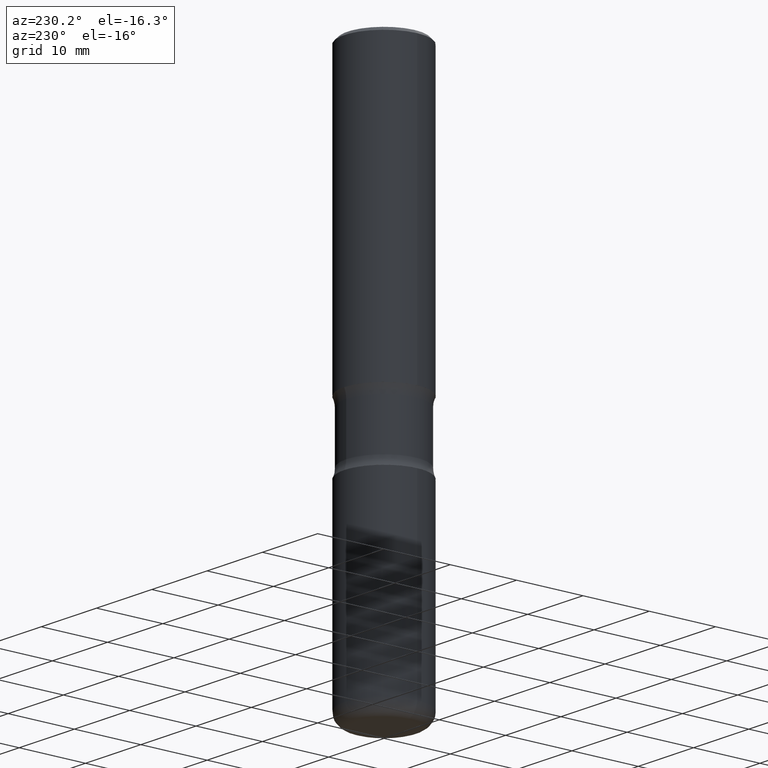
[diagram: clean part render]
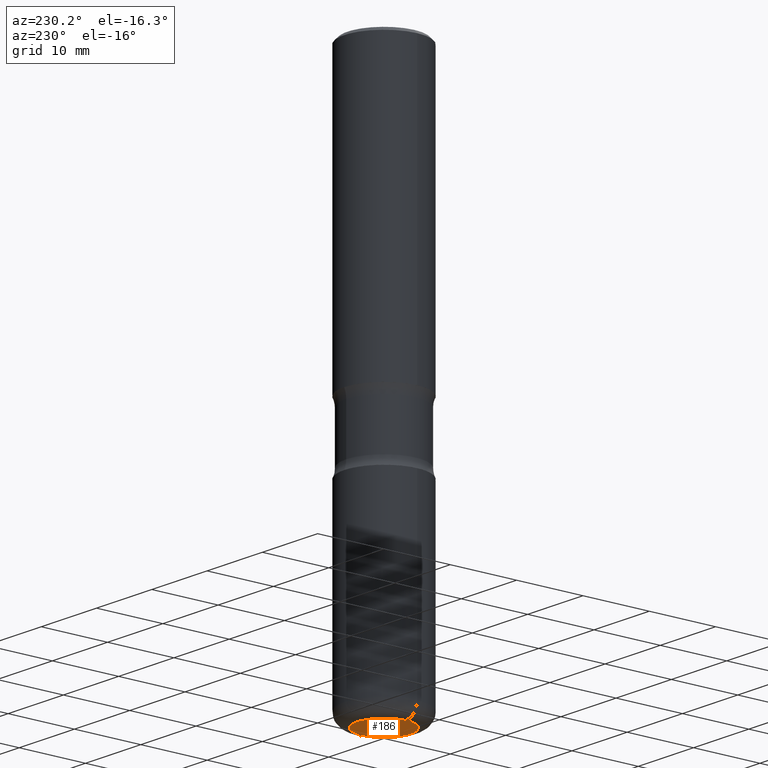
[diagram: same view with one face highlighted and labeled with its STEP entity id]
A machine part, auxiliary view. The second image highlights one B-rep face of the part: STEP entity #186.
In plain terms, the highlighted planar face has unit normal (0, -0, -1).
Its self-contained STEP definition (entity closure, byte-faithful):
#4 = CARTESIAN_POINT ( 'NONE',  ( 7.991058417971171713E-29, -1.140911357093774644E-14, -3.267700000000000049 ) ) ;
#19 = EDGE_LOOP ( 'NONE', ( #400, #449 ) ) ;
#29 = VERTEX_POINT ( 'NONE', #532 ) ;
#75 = EDGE_CURVE ( 'NONE', #29, #120, #157, .T. ) ;
#76 = DIRECTION ( 'NONE',  ( 1.000000000000000000, -6.982962677686265133E-15, 0.000000000000000000 ) ) ;
#100 = AXIS2_PLACEMENT_3D ( 'NONE', #4, #390, #76 ) ;
#120 = VERTEX_POINT ( 'NONE', #376 ) ;
#157 = CIRCLE ( 'NONE', #100, 0.1575000000000002232 ) ;
#186 = ADVANCED_FACE ( 'NONE', ( #430 ), #349, .T. ) ;
#227 = AXIS2_PLACEMENT_3D ( 'NONE', #228, #388, #229 ) ;
#228 = CARTESIAN_POINT ( 'NONE',  ( 7.538501650988127169E-31, -2.274480841398116641E-14, -3.267699999999999605 ) ) ;
#229 = DIRECTION ( 'NONE',  ( -1.000000000000000000, 6.982962677686265922E-15, -4.876176775795935793E-29 ) ) ;
#272 = CARTESIAN_POINT ( 'NONE',  ( 7.991058417971171713E-29, -1.140911357093774644E-14, -3.267700000000000049 ) ) ;
#290 = EDGE_CURVE ( 'NONE', #120, #29, #489, .T. ) ;
#299 = DIRECTION ( 'NONE',  ( 1.000000000000000000, -6.982962677686265133E-15, 0.000000000000000000 ) ) ;
#349 = PLANE ( 'NONE',  #227 ) ;
#376 = CARTESIAN_POINT ( 'NONE',  ( -0.1575000000000002232, -9.873020404910509617E-15, -3.267700000000000049 ) ) ;
#388 = DIRECTION ( 'NONE',  ( 2.438088387897960049E-29, -3.491481338843145188E-15, -1.000000000000000000 ) ) ;
#390 = DIRECTION ( 'NONE',  ( -2.445468806185136597E-29, 3.491481338843145583E-15, 1.000000000000000000 ) ) ;
#400 = ORIENTED_EDGE ( 'NONE', *, *, #75, .F. ) ;
#430 = FACE_OUTER_BOUND ( 'NONE', #19, .T. ) ;
#440 = DIRECTION ( 'NONE',  ( -2.445468806185136597E-29, 3.491481338843145583E-15, 1.000000000000000000 ) ) ;
#449 = ORIENTED_EDGE ( 'NONE', *, *, #290, .F. ) ;
#489 = CIRCLE ( 'NONE', #556, 0.1575000000000002232 ) ;
#532 = CARTESIAN_POINT ( 'NONE',  ( 0.1575000000000002232, -1.250893019267333471E-14, -3.267700000000000049 ) ) ;
#556 = AXIS2_PLACEMENT_3D ( 'NONE', #272, #440, #299 ) ;